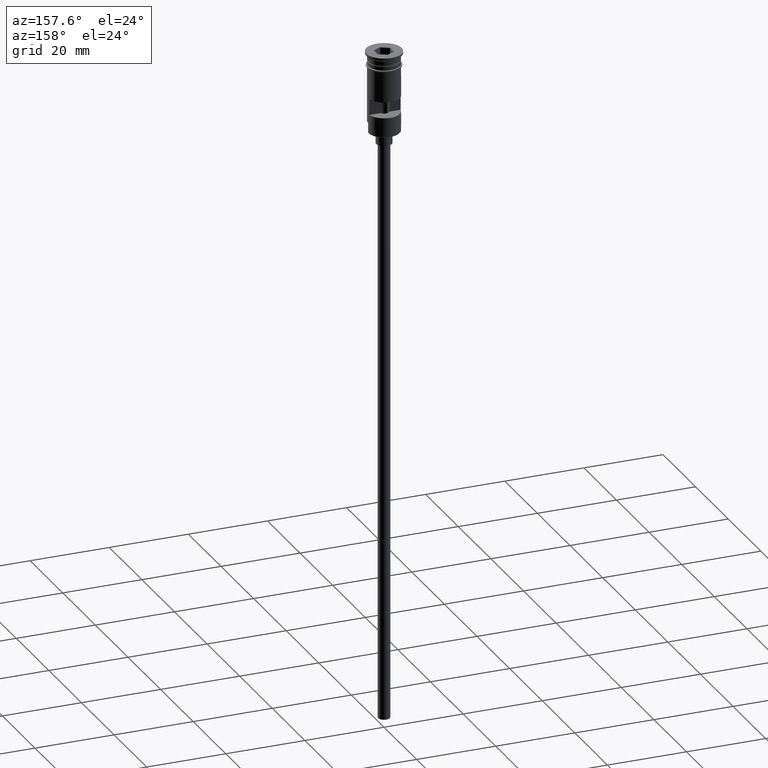
[diagram: clean part render]
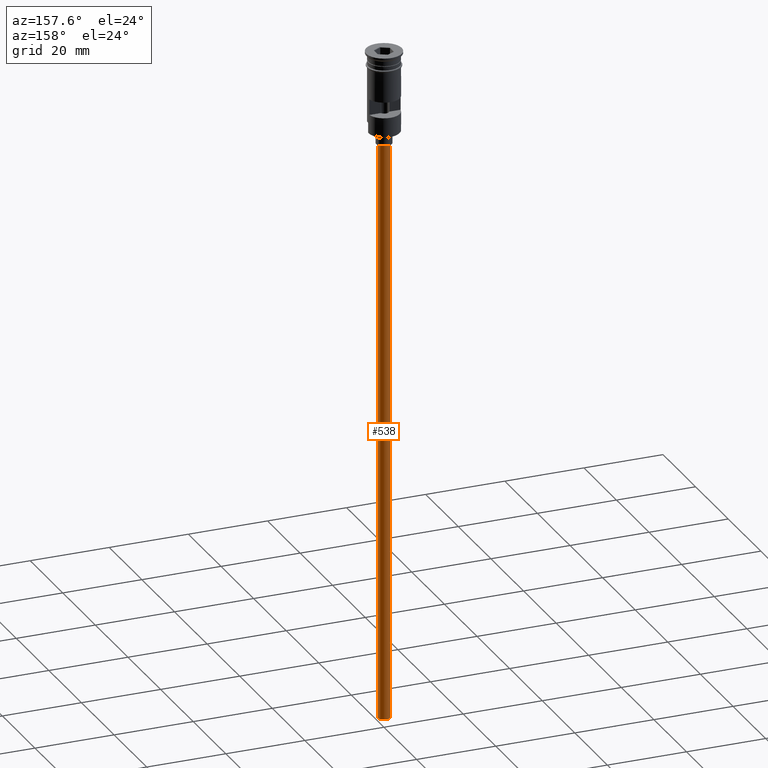
[diagram: same view with one face highlighted and labeled with its STEP entity id]
A machine part, auxiliary view. The second image highlights one B-rep face of the part: STEP entity #538.
In plain terms, the highlighted cylindrical surface (edge-blend (fillet) strip) has radius 1.5 mm, axis along (-0, -0, 1).
Its self-contained STEP definition (entity closure, byte-faithful):
#40 = CARTESIAN_POINT ( 'NONE',  ( 1.500000000000000222, 0.000000000000000000, -170.4999999999999716 ) ) ;
#59 = DIRECTION ( 'NONE',  ( -0.000000000000000000, -0.000000000000000000, 1.000000000000000000 ) ) ;
#213 = EDGE_CURVE ( 'NONE', #1147, #1306, #489, .T. ) ;
#221 = AXIS2_PLACEMENT_3D ( 'NONE', #574, #1080, #632 ) ;
#243 = VECTOR ( 'NONE', #621, 1000.000000000000000 ) ;
#293 = VERTEX_POINT ( 'NONE', #701 ) ;
#378 = ORIENTED_EDGE ( 'NONE', *, *, #213, .T. ) ;
#382 = DIRECTION ( 'NONE',  ( -1.000000000000000000, 0.000000000000000000, 0.000000000000000000 ) ) ;
#386 = VECTOR ( 'NONE', #1275, 1000.000000000000000 ) ;
#421 = CARTESIAN_POINT ( 'NONE',  ( -1.500000000000000222, 1.836970198721030181E-16, -170.4999999999999716 ) ) ;
#474 = CIRCLE ( 'NONE', #717, 1.500000000000000222 ) ;
#489 = CIRCLE ( 'NONE', #221, 1.500000000000000222 ) ;
#504 = EDGE_CURVE ( 'NONE', #293, #1147, #1530, .T. ) ;
#520 = FACE_OUTER_BOUND ( 'NONE', #541, .T. ) ;
#538 = ADVANCED_FACE ( 'NONE', ( #520 ), #1202, .T. ) ;
#541 = EDGE_LOOP ( 'NONE', ( #1386, #1394, #378, #1063 ) ) ;
#574 = CARTESIAN_POINT ( 'NONE',  ( 0.000000000000000000, 0.000000000000000000, -23.49999999999999645 ) ) ;
#621 = DIRECTION ( 'NONE',  ( -0.000000000000000000, -0.000000000000000000, 1.000000000000000000 ) ) ;
#632 = DIRECTION ( 'NONE',  ( -1.000000000000000000, 0.000000000000000000, 0.000000000000000000 ) ) ;
#701 = CARTESIAN_POINT ( 'NONE',  ( -1.500000000000000222, 1.836970198721030181E-16, -170.4999999999999716 ) ) ;
#717 = AXIS2_PLACEMENT_3D ( 'NONE', #1005, #1497, #382 ) ;
#868 = AXIS2_PLACEMENT_3D ( 'NONE', #1211, #59, #1192 ) ;
#976 = EDGE_CURVE ( 'NONE', #1040, #1306, #1143, .T. ) ;
#1005 = CARTESIAN_POINT ( 'NONE',  ( 0.000000000000000000, 0.000000000000000000, -170.4999999999999716 ) ) ;
#1040 = VERTEX_POINT ( 'NONE', #1392 ) ;
#1063 = ORIENTED_EDGE ( 'NONE', *, *, #976, .F. ) ;
#1080 = DIRECTION ( 'NONE',  ( 0.000000000000000000, 0.000000000000000000, -1.000000000000000000 ) ) ;
#1091 = CARTESIAN_POINT ( 'NONE',  ( 1.500000000000000222, 0.000000000000000000, -23.49999999999999645 ) ) ;
#1143 = LINE ( 'NONE', #40, #243 ) ;
#1147 = VERTEX_POINT ( 'NONE', #1418 ) ;
#1192 = DIRECTION ( 'NONE',  ( 1.000000000000000000, 0.000000000000000000, 0.000000000000000000 ) ) ;
#1202 = CYLINDRICAL_SURFACE ( 'NONE', #868, 1.500000000000000222 ) ;
#1211 = CARTESIAN_POINT ( 'NONE',  ( 0.000000000000000000, 0.000000000000000000, -170.4999999999999716 ) ) ;
#1275 = DIRECTION ( 'NONE',  ( -0.000000000000000000, -0.000000000000000000, 1.000000000000000000 ) ) ;
#1306 = VERTEX_POINT ( 'NONE', #1091 ) ;
#1386 = ORIENTED_EDGE ( 'NONE', *, *, #1521, .F. ) ;
#1392 = CARTESIAN_POINT ( 'NONE',  ( 1.500000000000000222, 0.000000000000000000, -170.4999999999999716 ) ) ;
#1394 = ORIENTED_EDGE ( 'NONE', *, *, #504, .T. ) ;
#1418 = CARTESIAN_POINT ( 'NONE',  ( -1.500000000000000222, 1.836970198721030181E-16, -23.49999999999999645 ) ) ;
#1497 = DIRECTION ( 'NONE',  ( 0.000000000000000000, 0.000000000000000000, -1.000000000000000000 ) ) ;
#1521 = EDGE_CURVE ( 'NONE', #293, #1040, #474, .T. ) ;
#1530 = LINE ( 'NONE', #421, #386 ) ;